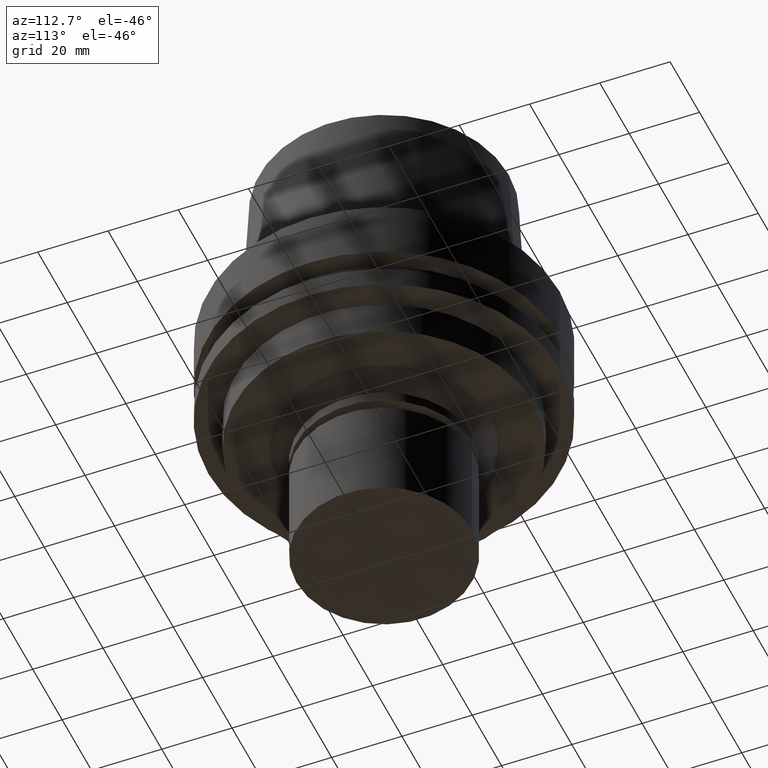
[diagram: clean part render]
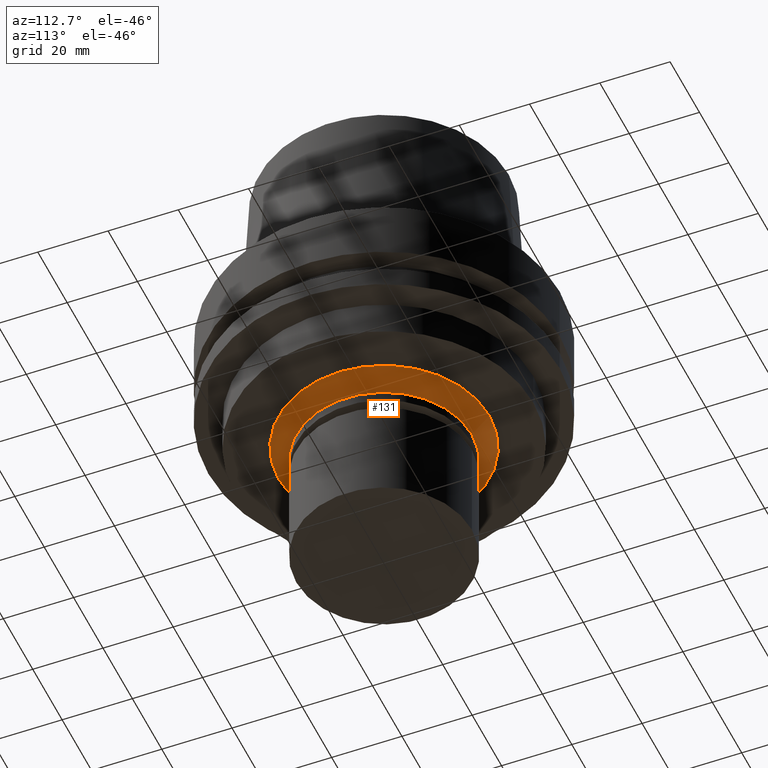
[diagram: same view with one face highlighted and labeled with its STEP entity id]
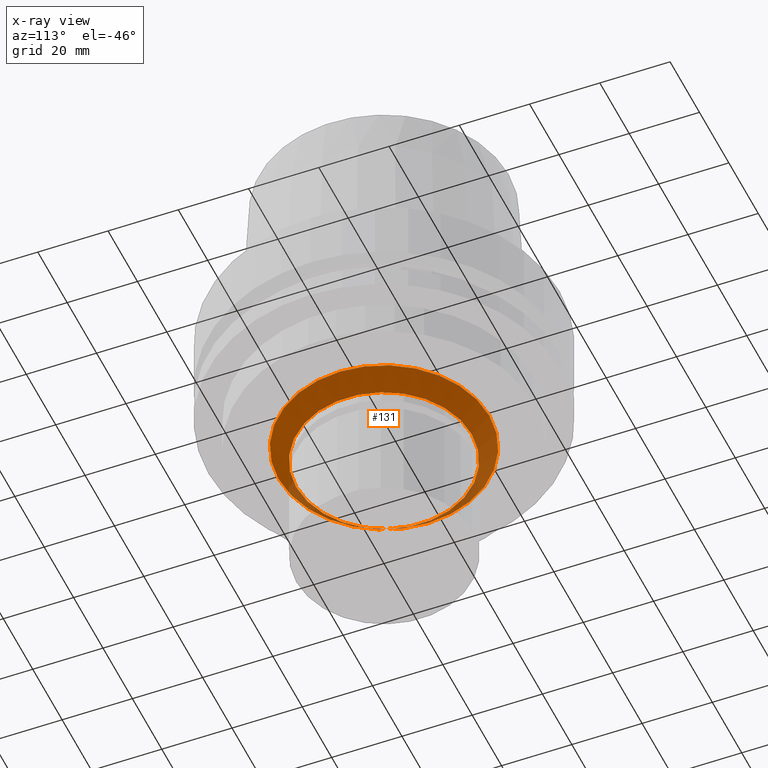
[diagram: x-ray of the same camera — body ghosted, the highlighted face saturated]
A machine part, auxiliary view. The second image highlights one B-rep face of the part: STEP entity #131.
The next image is the same camera in x-ray: the body ghosted, the highlighted face saturated — about 8% of this face is hidden behind the body in this view.
In plain terms, the highlighted conical surface has half-angle 45 deg.
Its self-contained STEP definition (entity closure, byte-faithful):
#131=ADVANCED_FACE('Unnamed[1]',(#294,#295),#296,.T.);
#189=EDGE_CURVE('Unnamed[1]',#388,#388,#389,.T.);
#201=EDGE_CURVE('Unnamed[1]',#407,#407,#408,.T.);
#294=FACE_BOUND('',#511,.T.);
#295=FACE_BOUND('',#512,.T.);
#296=CONICAL_SURFACE('',#513,27.5,0.785398163397448);
#388=VERTEX_POINT('',#628);
#389=CIRCLE('',#629,25.0);
#407=VERTEX_POINT('',#652);
#408=CIRCLE('',#653,30.0);
#511=EDGE_LOOP('',(#732));
#512=EDGE_LOOP('',(#733));
#513=AXIS2_PLACEMENT_3D('',#734,#735,#736);
#628=CARTESIAN_POINT('',(2.69422295812418E-015,25.0,-44.0));
#629=AXIS2_PLACEMENT_3D('',#839,#840,#841);
#652=CARTESIAN_POINT('',(2.38806125833734E-015,30.0,-39.0));
#653=AXIS2_PLACEMENT_3D('',#860,#861,#862);
#732=ORIENTED_EDGE('',*,*,#189,.F.);
#733=ORIENTED_EDGE('',*,*,#201,.T.);
#734=CARTESIAN_POINT('',(2.54114210823076E-015,5.08228421646152E-015,-41.5));
#735=DIRECTION('',(-6.12323399573677E-017,-1.22464679914735E-016,1.0));
#736=DIRECTION('',(-1.23259516440783E-032,1.0,1.22464679914735E-016));
#839=CARTESIAN_POINT('',(2.69422295812418E-015,5.38844591624835E-015,-44.0));
#840=DIRECTION('',(6.12323399573677E-017,1.22464679914735E-016,-1.0));
#841=DIRECTION('',(-1.23259516440783E-032,1.0,1.22464679914735E-016));
#860=CARTESIAN_POINT('',(2.38806125833734E-015,4.77612251667468E-015,-39.0));
#861=DIRECTION('',(6.12323399573677E-017,1.22464679914735E-016,-1.0));
#862=DIRECTION('',(-1.23259516440783E-032,1.0,1.22464679914735E-016));